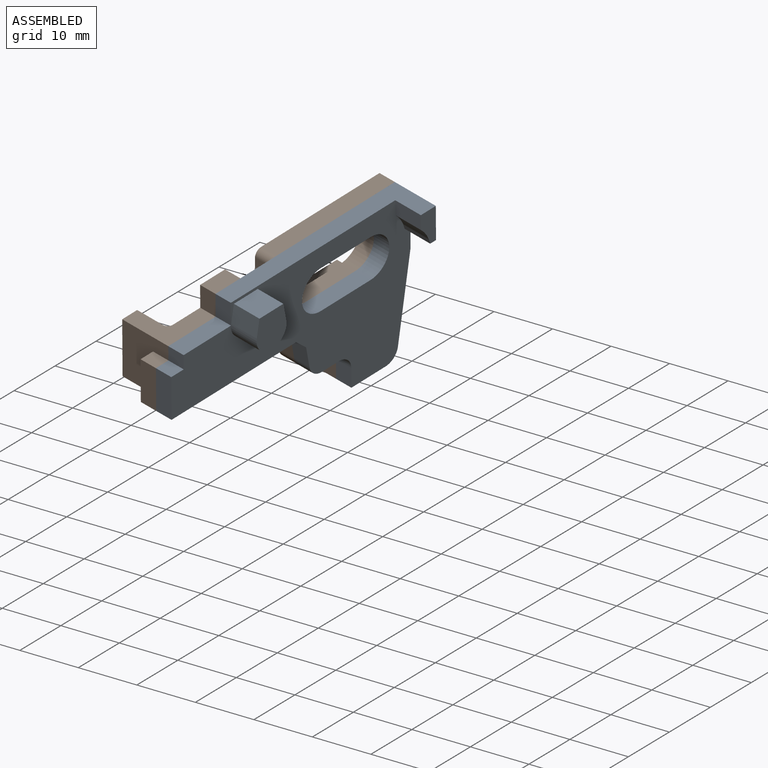
[diagram: assembled view]
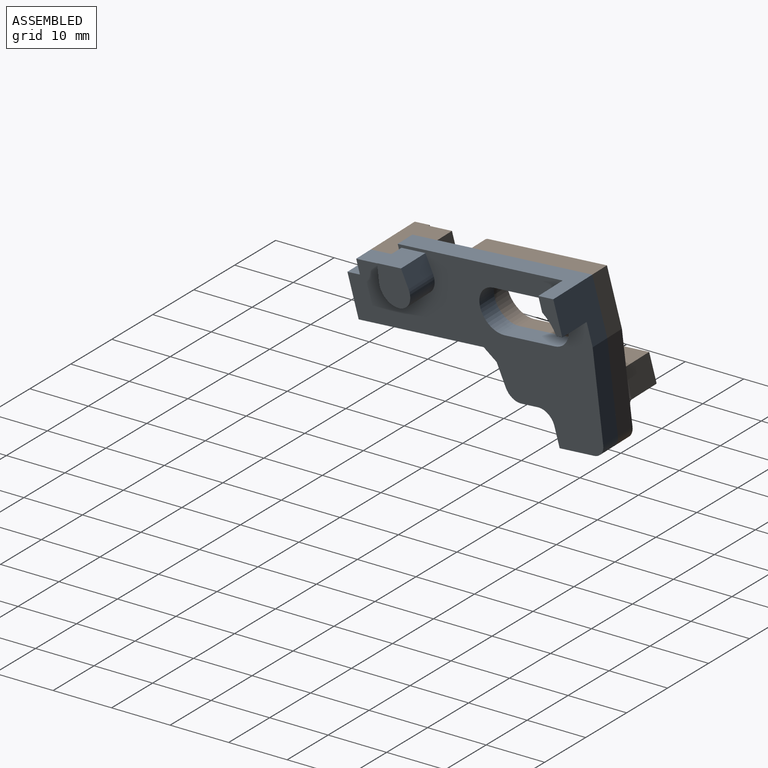
[diagram: assembled view, second angle]
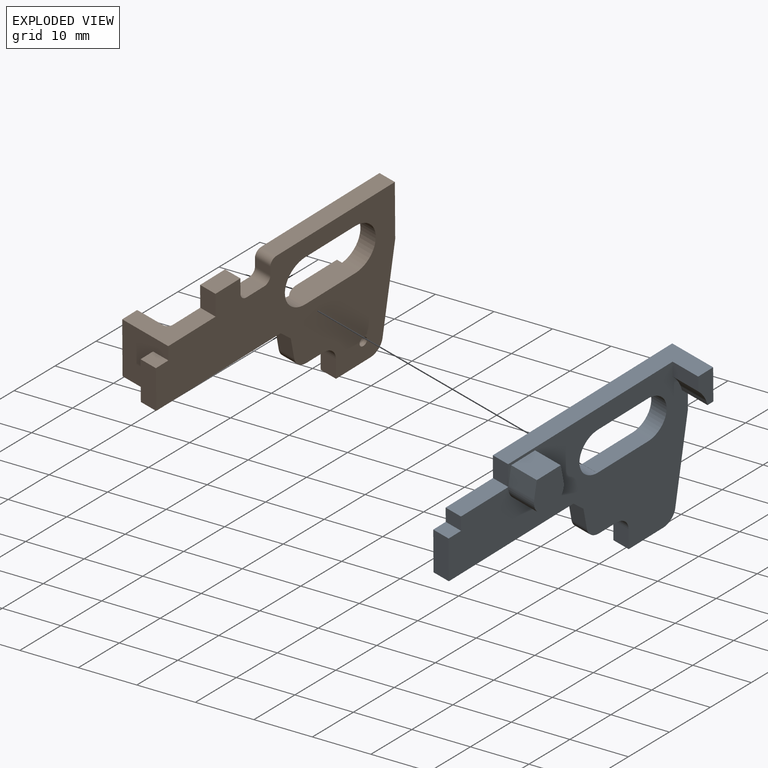
[diagram: exploded view]
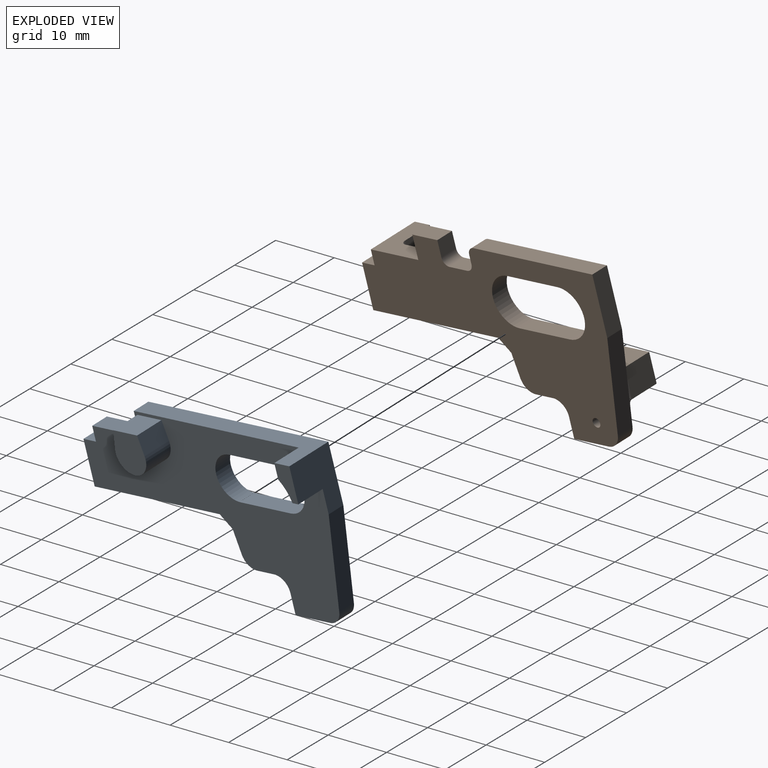
[diagram: exploded view, second angle]
ASSEMBLY  parts=2 mates=3
PART A: 32 faces, bbox 48x8x28 mm
  f0: cylinder r=3.75mm len=7.5mm, axis (0,1,0), area 35.3mm2, adj f1,f20,f21,f22
  f1: plane 10x3mm, normal (0,0,-1), area 30mm2, adj f0,f2,f21,f22
  f2: cylinder r=3.75mm len=7.5mm, axis (0,1,0), area 35.3mm2, adj f1,f20,f21,f22
  f3: cylinder r=2.5mm len=3mm, axis (0,1,0), area 11.8mm2, adj f4,f19,f21,f22
  f4: plane 3.5x3mm, normal (-1,0,0), area 10.5mm2, adj f3,f5,f21,f22
  f5: plane 6.88x3mm, normal (0,0,-1), area 20.6mm2, adj f4,f6,f21,f22
  f6: cylinder r=2.5mm len=3mm, axis (0,1,0), area 10.5mm2, adj f5,f7,f21,f22
  f7: plane 15.91x3mm, normal (0.99,0,-0.16), area 48.4mm2, adj f6,f8,f21,f22
  f8: plane 10x8mm, normal (1,0,0), area 60mm2, adj f7,f9,f21,f22,f28,f31
  f9: plane 36x8mm, normal (0,0,1), area 123mm2, adj f8,f10,f21,f22,f29,f31
  f10: plane 4x3mm, normal (-1,0,0), area 12mm2, adj f9,f11,f21,f22
  f11: plane 9.51x3mm, normal (0,0,1), area 28.5mm2, adj f10,f12,f21,f22
  f12: plane 3x2.5mm, normal (-1,0,0), area 7.5mm2, adj f11,f13,f21,f22
  f13: plane 3x2.5mm, normal (0,0,1), area 7.5mm2, adj f12,f14,f21,f22
  f14: plane 7.5x3mm, normal (-1,0,0), area 22.5mm2, adj f13,f15,f21,f22
  f15: plane 25x3mm, normal (0,0,-1), area 75mm2, adj f14,f16,f21,f22
  f16: plane 3x2mm, normal (-0.71,0,-0.71), area 8.5mm2, adj f15,f17,f21,f22
  f17: plane 3.91x3mm, normal (-0.99,0,-0.16), area 11.9mm2, adj f16,f18,f21,f22
  f18: cylinder r=2.5mm len=3mm, axis (0,1,0), area 10.5mm2, adj f17,f19,f21,f22
  f19: plane 3.38x3mm, normal (0,0,-1), area 10.1mm2, adj f3,f18,f21,f22
  f20: plane 10x3mm, normal (0,0,1), area 30mm2, adj f0,f2,f21,f22
  f21: plane 48x28mm, normal (0,-1,0), area 661.7mm2, adj f0,f1,f2,f3,f4,f5,f6,f7
  f22: plane 48x28mm, normal (0,1,0), area 710.1mm2, adj f0,f1,f2,f3,f4,f5,f6,f7
  f23: plane 5x3.18mm, normal (-0.98,0,0.17), area 16.2mm2, adj f21,f24,f26,f27
  f24: cylinder r=3mm len=6mm, axis (0,1,0), area 52.4mm2, adj f21,f23,f25,f27
  f25: plane 5x3.18mm, normal (0.98,0,0.17), area 16.2mm2, adj f21,f24,f26,f27
  f26: plane 5x4.79mm, normal (0,0,1), area 23.9mm2, adj f21,f23,f25,f27
  f27: plane 6.71x6mm, normal (0,-1,0), area 34.3mm2, adj f23,f24,f25,f26
  f28: plane 5x1.16mm, normal (0,0,-1), area 5.8mm2, adj f8,f21,f30,f31
  f29: plane 5x2.6mm, normal (-1,0,0), area 13mm2, adj f9,f21,f30,f31
  f30: cylinder r=7mm len=5mm, axis (0,1,0), area 19.6mm2, adj f21,f28,f29,f31
  f31: plane 6x3mm, normal (0,-1,0), area 14.2mm2, adj f8,f9,f28,f29,f30
PART B: 65 faces, bbox 48x9x28 mm
  f0: plane 11x10.33mm, normal (0,1,0), area 68.7mm2, adj f7,f8,f9,f10,f11,f32,f41,f49
  f1: plane 5x3mm, normal (0,0,1), area 15mm2, adj f2,f14,f25,f45
  f2: plane 41.5x21.74mm, normal (0,1,0), area 378.4mm2, adj f1,f4,f5,f6,f11,f12,f13,f14
  f3: plane 7.5x2.5mm, normal (0,1,0), area 18.8mm2, adj f16,f17,f18,f19
  f4: cylinder r=4.12mm len=8.25mm, axis (0,1,0), area 38.9mm2, adj f2,f5,f24,f25
  f5: plane 10x3mm, normal (0,0,-1), area 30mm2, adj f2,f4,f6,f25
  f6: cylinder r=4.12mm len=8.25mm, axis (0,1,0), area 38.9mm2, adj f2,f5,f24,f25
  f7: cylinder r=2.5mm len=4mm, axis (0,1,0), area 12.9mm2, adj f0,f8,f23,f25,f57
  f8: plane 3.5x3mm, normal (-1,0,0), area 10.5mm2, adj f0,f7,f9,f25
  f9: plane 6.88x3mm, normal (0,0,-1), area 20.6mm2, adj f0,f8,f10,f25
  f10: cylinder r=2.5mm len=3mm, axis (0,1,0), area 10.5mm2, adj f0,f9,f11,f25
  f11: plane 15.91x3mm, normal (0.99,0,-0.16), area 48.4mm2, adj f0,f2,f10,f12,f25,f55
  f12: plane 10x3mm, normal (1,0,0), area 30mm2, adj f2,f11,f13,f25
  f13: plane 23.75x3mm, normal (0,0,1), area 71.2mm2, adj f2,f12,f25,f46
  f14: plane 4x3mm, normal (-1,0,0), area 12mm2, adj f1,f2,f15,f25
  f15: plane 9.5x9mm, normal (0,0,1), area 46.7mm2, adj f2,f14,f16,f25,f26,f30,f59
  f16: plane 10x9mm, normal (-1,0,0), area 67.5mm2, adj f3,f15,f17,f19,f25,f30
  f17: plane 3x2.5mm, normal (0,0,1), area 7.5mm2, adj f3,f16,f18,f25
  f18: plane 7.5x3mm, normal (-1,0,0), area 22.5mm2, adj f3,f17,f19,f25
  f19: plane 25x9mm, normal (0,0,-1), area 156.2mm2, adj f2,f3,f16,f18,f20,f25,f29,f30
  f20: plane 3x2mm, normal (-0.71,0,-0.71), area 8.5mm2, adj f2,f19,f21,f25
  f21: plane 3.91x3mm, normal (-0.99,0,-0.16), area 11.9mm2, adj f2,f20,f22,f25
  f22: cylinder r=2.5mm len=3.12mm, axis (0,1,0), area 10.6mm2, adj f2,f21,f23,f25,f36
  f23: plane 15.38x9mm, normal (0,0,-1), area 66mm2, adj f7,f22,f25,f33,f34,f35,f36,f51
  f24: plane 10x3mm, normal (0,0,1), area 30mm2, adj f2,f4,f6,f25
  f25: plane 48x28mm, normal (0,-1,0), area 667.9mm2, adj f1,f4,f5,f6,f7,f8,f9,f10
  f26: plane 5x2.39mm, normal (1,0,0), area 12mm2, adj f15,f30,f37,f59
  f27: plane 5x2.41mm, normal (0.55,0,0.83), area 14.5mm2, adj f30,f37,f38,f61
  f28: plane 5.09x5mm, normal (0,0,1), area 25.5mm2, adj f29,f30,f38,f64
  f29: plane 5x3mm, normal (1,0,0), area 15mm2, adj f19,f28,f30,f62
  f30: plane 13.5x10mm, normal (0,1,0), area 68.7mm2, adj f15,f16,f19,f26,f27,f28,f29,f37
  f31: plane 13.49x5mm, normal (0,0,1), area 52.6mm2, adj f33,f34,f35,f36,f42,f51,f58
  f32: plane 7x0.5mm, normal (1,0,0), area 2.9mm2, adj f0,f51,f52,f57,f58
  f33: plane 8.01x5.13mm, normal (1,0,0), area 25.9mm2, adj f23,f31,f34,f39,f42,f54,f55,f56
  f34: plane 8x5mm, normal (0,1,0), area 40mm2, adj f23,f31,f33,f35
  f35: cylinder r=4mm len=5mm, axis (0,0,-1), area 24.6mm2, adj f23,f31,f34,f36
  f36: cylinder r=5mm len=6mm, axis (0,0,-1), area 32.2mm2, adj f2,f22,f23,f31,f35,f58
  f37: cylinder r=3mm len=5mm, axis (0,1,0), area 14.7mm2, adj f26,f27,f30,f60
  f38: cylinder r=3mm len=5mm, axis (0,1,0), area 8.8mm2, adj f27,f28,f30,f63
  f39: plane 6x0.25mm, normal (0,0,1), area 1.5mm2, adj f33,f40,f42,f53
  f40: plane 3x0.25mm, normal (-1,0,0), area 0.8mm2, adj f39,f41,f42,f52
  f41: plane 4x1.25mm, normal (0,0,-1), area 3.9mm2, adj f0,f40,f42,f50,f51,f52
  f42: plane 6x3mm, normal (0,1,0), area 18mm2, adj f31,f33,f39,f40,f41
  f43: plane 3x1.5mm, normal (-1,0,0), area 4.5mm2, adj f2,f25,f46,f47
  f44: plane 3.5x3mm, normal (0,0,1), area 10.5mm2, adj f2,f25,f47,f48
  f45: plane 3x2.75mm, normal (1,0,0), area 8.3mm2, adj f1,f2,f25,f48
  f46: cylinder r=1.25mm len=3mm, axis (0,-1,0), area 5.9mm2, adj f2,f13,f25,f43
  f47: cylinder r=1.25mm len=3mm, axis (0,-1,0), area 5.9mm2, adj f2,f25,f43,f44
  f48: cylinder r=1.25mm len=3mm, axis (0,1,0), area 5.9mm2, adj f2,f25,f44,f45
  f49: cylinder r=0.75mm len=3mm, axis (0,1,0), area 14.1mm2, adj f0,f25
  f50: plane 6x0.5mm, normal (-1,0,0), area 2.7mm2, adj f0,f41,f51,f56
  f51: cylinder r=2mm len=5.27mm, axis (0,0,1), area 31.5mm2, adj f23,f31,f32,f41,f50,f56,f57,f58
  f52: cylinder r=1mm len=4mm, axis (0,0,-1), area 5.5mm2, adj f2,f32,f40,f41,f53
  f53: cylinder r=1mm len=8mm, axis (-1,0,0), area 11mm2, adj f2,f39,f52,f54
  f54: cylinder r=1mm len=6mm, axis (0,0,1), area 8.6mm2, adj f2,f33,f53,f55
  f55: bspline ~4.11x1mm, area 4.2mm2, adj f11,f33,f54,f56
  f56: cylinder r=1mm len=3.4mm, axis (1,0,0), area 5mm2, adj f0,f23,f33,f50,f51,f55
  f57: cylinder r=1mm len=5.06mm, axis (-1,0,0), area 6.3mm2, adj f0,f7,f23,f32,f51
  f58: cylinder r=1mm len=9.55mm, axis (-1,0,0), area 12.6mm2, adj f2,f31,f32,f36,f51
  f59: cylinder r=1mm len=2.39mm, axis (0,0,1), area 3.8mm2, adj f2,f15,f26,f60
  f60: torus R=2mm, axis (0,-1,0), area 4.1mm2, adj f2,f37,f59,f61
  f61: cylinder r=1mm len=2.96mm, axis (-0.83,0,0.55), area 4.5mm2, adj f2,f27,f60,f63
  f62: cylinder r=1mm len=4mm, axis (0,0,1), area 5.5mm2, adj f2,f19,f29,f64
  f63: torus R=2mm, axis (0,-1,0), area 2.4mm2, adj f2,f38,f61,f64
  f64: cylinder r=1mm len=6.09mm, axis (-1,0,0), area 8.8mm2, adj f2,f28,f62,f63
PLACE A rot(axis=(0.16,-0.02,0.99),81.5deg) t=(25.42,-40.99,56.15)mm
PLACE B rot(axis=(0.16,-0.02,0.99),81.5deg) t=(22.49,-40.54,56.58)mm
MATE cylindrical B.f6 <-> A.f2  axis (0.98,-0.15,-0.14) through (28.9,-26.55,64.96)mm
MATE planar B.f25 <-> A.f22  axis (0.98,-0.15,-0.14) through (26.36,-37.78,59.21)mm
MATE cylindrical B.f4 <-> A.f0  axis (-0.98,0.15,0.14) through (27.2,-36.28,63.43)mm
